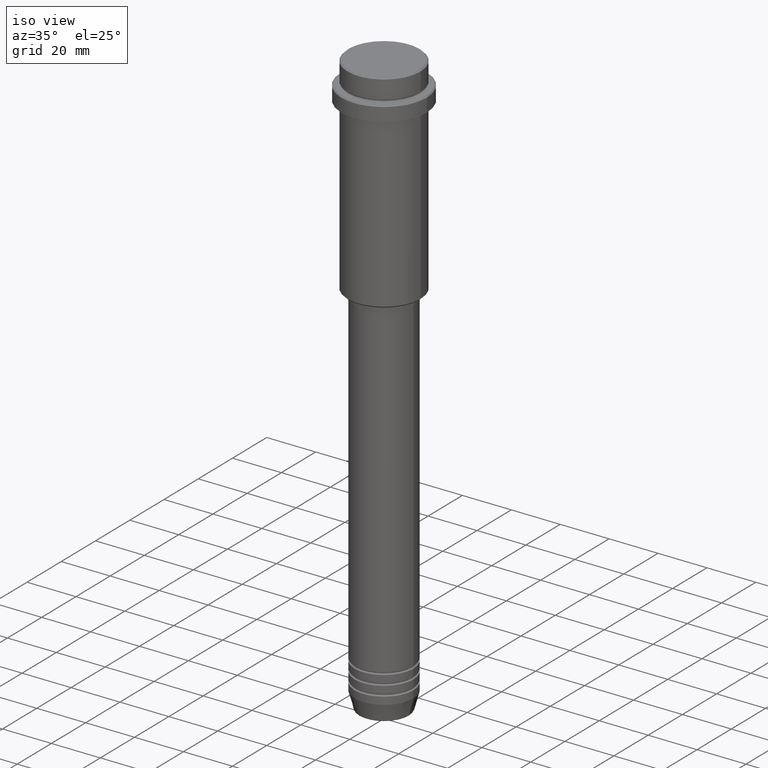
[diagram: clean part render]
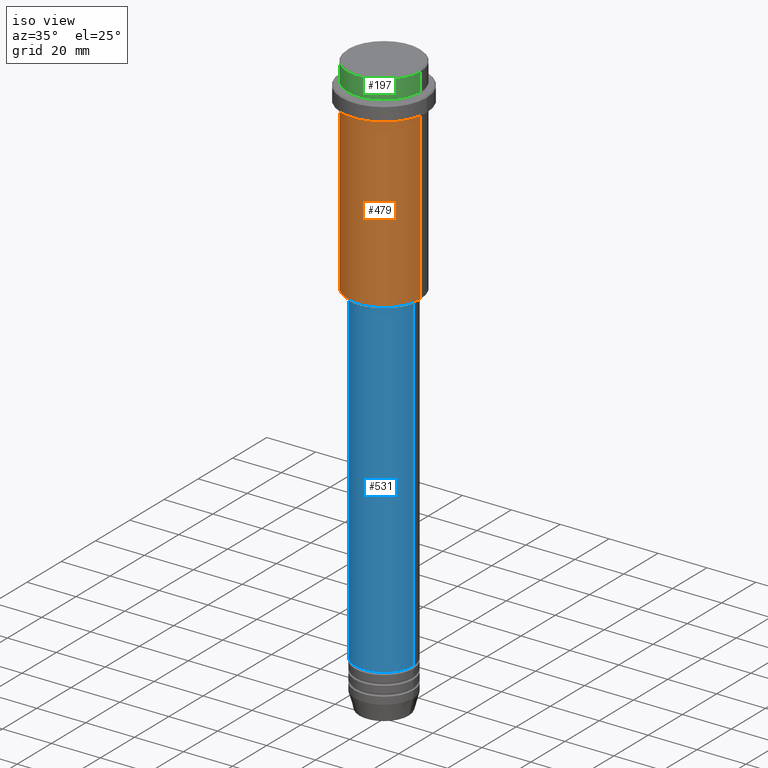
[diagram: same view with three faces highlighted in distinct colors, each labeled with its STEP entity id]
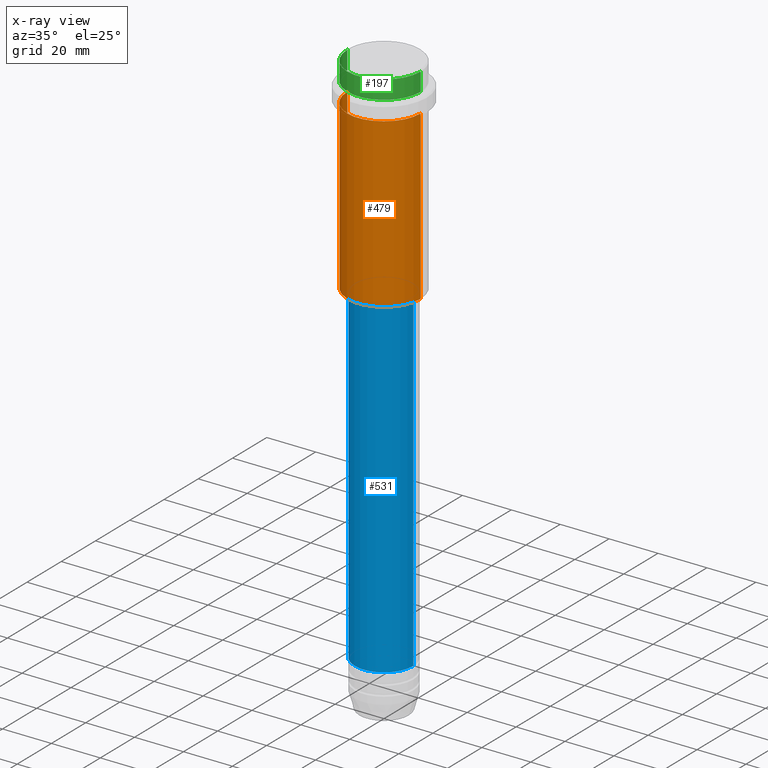
[diagram: x-ray of the same camera — body ghosted, the three highlighted faces saturated]
A machine part, iso view with three faces highlighted in distinct colors.
The next image is the same camera in x-ray (body ghosted, the three faces saturated) — at least one of them is partly hidden behind the body in this view.
Their STEP definitions:

[orange] entity #479 — the highlighted cylindrical surface (partial cylindrical patch) has radius 15 mm, axis along (-0, -0, 1).
#17 = CARTESIAN_POINT ( 'NONE',  ( 0.000000000000000000, 0.000000000000000000, -84.49999999999992895 ) ) ;
#48 = FACE_OUTER_BOUND ( 'NONE', #1077, .T. ) ;
#110 = DIRECTION ( 'NONE',  ( -0.000000000000000000, -0.000000000000000000, 1.000000000000000000 ) ) ;
#151 = AXIS2_PLACEMENT_3D ( 'NONE', #1063, #408, #842 ) ;
#152 = ORIENTED_EDGE ( 'NONE', *, *, #1218, .T. ) ;
#161 = VERTEX_POINT ( 'NONE', #285 ) ;
#209 = LINE ( 'NONE', #865, #310 ) ;
#235 = DIRECTION ( 'NONE',  ( -1.000000000000000000, 0.000000000000000000, 0.000000000000000000 ) ) ;
#264 = CIRCLE ( 'NONE', #151, 15.00000000000000178 ) ;
#272 = CARTESIAN_POINT ( 'NONE',  ( 0.000000000000000000, 0.000000000000000000, 0.000000000000000000 ) ) ;
#285 = CARTESIAN_POINT ( 'NONE',  ( 15.00000000000000000, 0.000000000000000000, -84.49999999999992895 ) ) ;
#310 = VECTOR ( 'NONE', #110, 1000.000000000000000 ) ;
#329 = CARTESIAN_POINT ( 'NONE',  ( -15.00000000000000000, 1.836970198721029589E-15, -84.49999999999992895 ) ) ;
#408 = DIRECTION ( 'NONE',  ( -0.000000000000000000, -0.000000000000000000, 1.000000000000000000 ) ) ;
#448 = DIRECTION ( 'NONE',  ( -0.000000000000000000, -0.000000000000000000, 1.000000000000000000 ) ) ;
#452 = ORIENTED_EDGE ( 'NONE', *, *, #623, .F. ) ;
#479 = ADVANCED_FACE ( 'NONE', ( #48 ), #1360, .T. ) ;
#506 = EDGE_CURVE ( 'NONE', #161, #1274, #849, .T. ) ;
#526 = CARTESIAN_POINT ( 'NONE',  ( 15.00000000000000000, 0.000000000000000000, 0.000000000000000000 ) ) ;
#552 = EDGE_CURVE ( 'NONE', #1144, #1105, #209, .T. ) ;
#601 = VECTOR ( 'NONE', #729, 1000.000000000000000 ) ;
#623 = EDGE_CURVE ( 'NONE', #1105, #1274, #264, .T. ) ;
#648 = CARTESIAN_POINT ( 'NONE',  ( -15.00000000000000355, 1.836970198721029983E-15, -16.00000000000000000 ) ) ;
#657 = ORIENTED_EDGE ( 'NONE', *, *, #552, .F. ) ;
#729 = DIRECTION ( 'NONE',  ( -0.000000000000000000, -0.000000000000000000, 1.000000000000000000 ) ) ;
#818 = DIRECTION ( 'NONE',  ( 1.000000000000000000, 0.000000000000000000, 0.000000000000000000 ) ) ;
#836 = ORIENTED_EDGE ( 'NONE', *, *, #506, .T. ) ;
#842 = DIRECTION ( 'NONE',  ( 1.000000000000000000, 0.000000000000000000, 0.000000000000000000 ) ) ;
#849 = LINE ( 'NONE', #526, #601 ) ;
#865 = CARTESIAN_POINT ( 'NONE',  ( -15.00000000000000000, 1.836970198721029589E-15, 0.000000000000000000 ) ) ;
#958 = CIRCLE ( 'NONE', #1213, 15.00000000000000000 ) ;
#1063 = CARTESIAN_POINT ( 'NONE',  ( 0.000000000000000000, 0.000000000000000000, -16.00000000000000000 ) ) ;
#1077 = EDGE_LOOP ( 'NONE', ( #657, #152, #836, #452 ) ) ;
#1105 = VERTEX_POINT ( 'NONE', #648 ) ;
#1134 = CARTESIAN_POINT ( 'NONE',  ( 15.00000000000000178, 0.000000000000000000, -16.00000000000000000 ) ) ;
#1144 = VERTEX_POINT ( 'NONE', #329 ) ;
#1149 = DIRECTION ( 'NONE',  ( -0.000000000000000000, -0.000000000000000000, 1.000000000000000000 ) ) ;
#1213 = AXIS2_PLACEMENT_3D ( 'NONE', #17, #448, #235 ) ;
#1218 = EDGE_CURVE ( 'NONE', #1144, #161, #958, .T. ) ;
#1237 = AXIS2_PLACEMENT_3D ( 'NONE', #272, #1149, #818 ) ;
#1274 = VERTEX_POINT ( 'NONE', #1134 ) ;
#1360 = CYLINDRICAL_SURFACE ( 'NONE', #1237, 15.00000000000000000 ) ;

[blue] entity #531 — the highlighted cylindrical surface (edge-blend (fillet) strip) has radius 12 mm, axis along (-0, -0, 1).
#6 = VERTEX_POINT ( 'NONE', #168 ) ;
#19 = CARTESIAN_POINT ( 'NONE',  ( 0.000000000000000000, 0.000000000000000000, -220.9999999999998863 ) ) ;
#38 = DIRECTION ( 'NONE',  ( -0.000000000000000000, -0.000000000000000000, 1.000000000000000000 ) ) ;
#118 = DIRECTION ( 'NONE',  ( 1.000000000000000000, 0.000000000000000000, 0.000000000000000000 ) ) ;
#168 = CARTESIAN_POINT ( 'NONE',  ( 11.99999999999999822, 0.000000000000000000, -86.00000000000000000 ) ) ;
#215 = CARTESIAN_POINT ( 'NONE',  ( 0.000000000000000000, 0.000000000000000000, -86.00000000000000000 ) ) ;
#220 = AXIS2_PLACEMENT_3D ( 'NONE', #19, #685, #118 ) ;
#288 = CARTESIAN_POINT ( 'NONE',  ( -12.00000000000000000, 1.469576158976823947E-15, -220.9999999999998863 ) ) ;
#357 = ORIENTED_EDGE ( 'NONE', *, *, #1357, .F. ) ;
#409 = EDGE_LOOP ( 'NONE', ( #357, #1112, #562, #940 ) ) ;
#419 = CYLINDRICAL_SURFACE ( 'NONE', #929, 12.00000000000000000 ) ;
#429 = DIRECTION ( 'NONE',  ( -0.000000000000000000, -0.000000000000000000, 1.000000000000000000 ) ) ;
#531 = ADVANCED_FACE ( 'NONE', ( #965 ), #419, .T. ) ;
#562 = ORIENTED_EDGE ( 'NONE', *, *, #825, .T. ) ;
#574 = LINE ( 'NONE', #1017, #959 ) ;
#593 = EDGE_CURVE ( 'NONE', #1071, #6, #651, .T. ) ;
#624 = DIRECTION ( 'NONE',  ( 1.000000000000000000, 0.000000000000000000, 0.000000000000000000 ) ) ;
#650 = DIRECTION ( 'NONE',  ( -0.000000000000000000, -0.000000000000000000, 1.000000000000000000 ) ) ;
#651 = CIRCLE ( 'NONE', #973, 11.99999999999999822 ) ;
#685 = DIRECTION ( 'NONE',  ( -0.000000000000000000, -0.000000000000000000, 1.000000000000000000 ) ) ;
#699 = EDGE_CURVE ( 'NONE', #945, #974, #976, .T. ) ;
#808 = CARTESIAN_POINT ( 'NONE',  ( 12.00000000000000000, 0.000000000000000000, 0.000000000000000000 ) ) ;
#825 = EDGE_CURVE ( 'NONE', #974, #6, #936, .T. ) ;
#913 = DIRECTION ( 'NONE',  ( -0.000000000000000000, -0.000000000000000000, 1.000000000000000000 ) ) ;
#929 = AXIS2_PLACEMENT_3D ( 'NONE', #1396, #429, #1305 ) ;
#936 = LINE ( 'NONE', #808, #1024 ) ;
#940 = ORIENTED_EDGE ( 'NONE', *, *, #593, .F. ) ;
#945 = VERTEX_POINT ( 'NONE', #288 ) ;
#957 = CARTESIAN_POINT ( 'NONE',  ( 12.00000000000000000, 0.000000000000000000, -220.9999999999998863 ) ) ;
#959 = VECTOR ( 'NONE', #38, 1000.000000000000000 ) ;
#965 = FACE_OUTER_BOUND ( 'NONE', #409, .T. ) ;
#973 = AXIS2_PLACEMENT_3D ( 'NONE', #215, #650, #624 ) ;
#974 = VERTEX_POINT ( 'NONE', #957 ) ;
#976 = CIRCLE ( 'NONE', #220, 12.00000000000000000 ) ;
#1017 = CARTESIAN_POINT ( 'NONE',  ( -12.00000000000000000, 1.469576158976823947E-15, 0.000000000000000000 ) ) ;
#1024 = VECTOR ( 'NONE', #913, 1000.000000000000000 ) ;
#1071 = VERTEX_POINT ( 'NONE', #1175 ) ;
#1112 = ORIENTED_EDGE ( 'NONE', *, *, #699, .T. ) ;
#1175 = CARTESIAN_POINT ( 'NONE',  ( -11.99999999999999822, 1.469576158976823750E-15, -86.00000000000000000 ) ) ;
#1305 = DIRECTION ( 'NONE',  ( 1.000000000000000000, 0.000000000000000000, 0.000000000000000000 ) ) ;
#1357 = EDGE_CURVE ( 'NONE', #945, #1071, #574, .T. ) ;
#1396 = CARTESIAN_POINT ( 'NONE',  ( 0.000000000000000000, 0.000000000000000000, 0.000000000000000000 ) ) ;

[green] entity #197 — the highlighted cylindrical surface (partial cylindrical patch) has radius 15 mm, axis along (-0, -0, 1).
#21 = VERTEX_POINT ( 'NONE', #595 ) ;
#63 = AXIS2_PLACEMENT_3D ( 'NONE', #879, #570, #394 ) ;
#65 = AXIS2_PLACEMENT_3D ( 'NONE', #681, #1090, #1323 ) ;
#89 = ORIENTED_EDGE ( 'NONE', *, *, #1397, .F. ) ;
#142 = CARTESIAN_POINT ( 'NONE',  ( 0.000000000000000000, 0.000000000000000000, 0.000000000000000000 ) ) ;
#145 = ORIENTED_EDGE ( 'NONE', *, *, #1150, .T. ) ;
#197 = ADVANCED_FACE ( 'NONE', ( #577 ), #672, .T. ) ;
#211 = EDGE_LOOP ( 'NONE', ( #89, #450, #145, #828 ) ) ;
#230 = VERTEX_POINT ( 'NONE', #461 ) ;
#240 = AXIS2_PLACEMENT_3D ( 'NONE', #142, #551, #785 ) ;
#314 = LINE ( 'NONE', #750, #815 ) ;
#394 = DIRECTION ( 'NONE',  ( 1.000000000000000000, 0.000000000000000000, 0.000000000000000000 ) ) ;
#450 = ORIENTED_EDGE ( 'NONE', *, *, #1130, .T. ) ;
#461 = CARTESIAN_POINT ( 'NONE',  ( 15.00000000000000000, 0.000000000000000000, -7.999999999999998224 ) ) ;
#541 = CARTESIAN_POINT ( 'NONE',  ( 15.00000000000000000, 0.000000000000000000, 0.000000000000000000 ) ) ;
#551 = DIRECTION ( 'NONE',  ( -0.000000000000000000, -0.000000000000000000, 1.000000000000000000 ) ) ;
#570 = DIRECTION ( 'NONE',  ( 0.000000000000000000, 0.000000000000000000, -1.000000000000000000 ) ) ;
#577 = FACE_OUTER_BOUND ( 'NONE', #211, .T. ) ;
#595 = CARTESIAN_POINT ( 'NONE',  ( -15.00000000000000000, 1.836970198721029589E-15, -7.999999999999998224 ) ) ;
#605 = CARTESIAN_POINT ( 'NONE',  ( -15.00000000000000000, 1.836970198721029589E-15, -0.4999999999999831246 ) ) ;
#672 = CYLINDRICAL_SURFACE ( 'NONE', #240, 15.00000000000000000 ) ;
#681 = CARTESIAN_POINT ( 'NONE',  ( 0.000000000000000000, 0.000000000000000000, -7.999999999999998224 ) ) ;
#742 = CIRCLE ( 'NONE', #63, 15.00000000000000000 ) ;
#750 = CARTESIAN_POINT ( 'NONE',  ( -15.00000000000000000, 1.836970198721029589E-15, 0.000000000000000000 ) ) ;
#785 = DIRECTION ( 'NONE',  ( 1.000000000000000000, 0.000000000000000000, 0.000000000000000000 ) ) ;
#806 = EDGE_CURVE ( 'NONE', #1394, #948, #742, .T. ) ;
#815 = VECTOR ( 'NONE', #1273, 1000.000000000000000 ) ;
#828 = ORIENTED_EDGE ( 'NONE', *, *, #806, .T. ) ;
#857 = VECTOR ( 'NONE', #1099, 1000.000000000000000 ) ;
#879 = CARTESIAN_POINT ( 'NONE',  ( 0.000000000000000000, 0.000000000000000000, -0.4999999999999831246 ) ) ;
#948 = VERTEX_POINT ( 'NONE', #605 ) ;
#989 = LINE ( 'NONE', #541, #857 ) ;
#1090 = DIRECTION ( 'NONE',  ( -0.000000000000000000, -0.000000000000000000, 1.000000000000000000 ) ) ;
#1099 = DIRECTION ( 'NONE',  ( -0.000000000000000000, -0.000000000000000000, 1.000000000000000000 ) ) ;
#1130 = EDGE_CURVE ( 'NONE', #21, #230, #1412, .T. ) ;
#1150 = EDGE_CURVE ( 'NONE', #230, #1394, #989, .T. ) ;
#1188 = CARTESIAN_POINT ( 'NONE',  ( 15.00000000000000000, 0.000000000000000000, -0.4999999999999831246 ) ) ;
#1273 = DIRECTION ( 'NONE',  ( -0.000000000000000000, -0.000000000000000000, 1.000000000000000000 ) ) ;
#1323 = DIRECTION ( 'NONE',  ( 1.000000000000000000, 0.000000000000000000, 0.000000000000000000 ) ) ;
#1394 = VERTEX_POINT ( 'NONE', #1188 ) ;
#1397 = EDGE_CURVE ( 'NONE', #21, #948, #314, .T. ) ;
#1412 = CIRCLE ( 'NONE', #65, 15.00000000000000000 ) ;